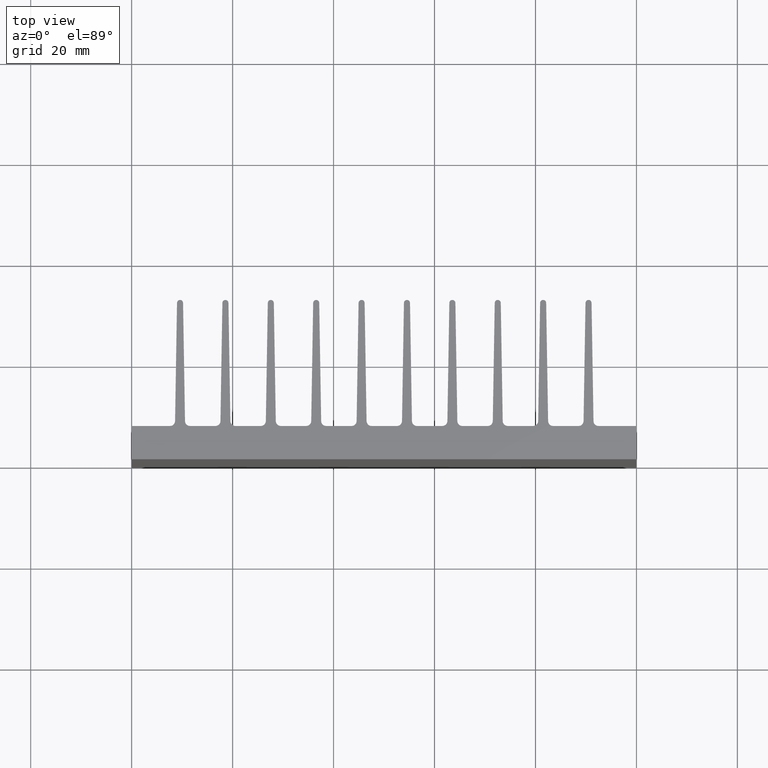
[diagram: clean part render]
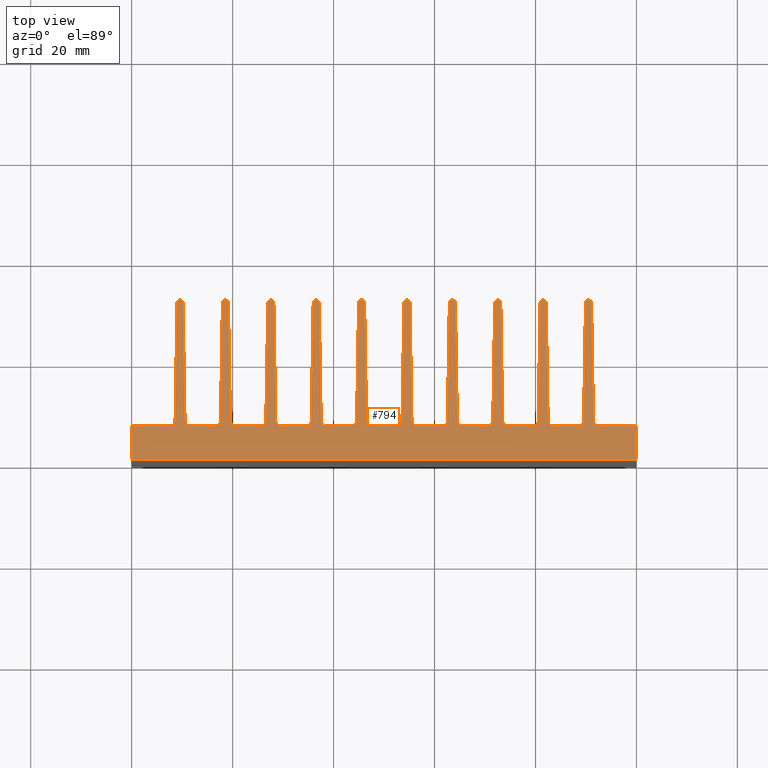
[diagram: same view with one face highlighted and labeled with its STEP entity id]
A machine part, top view. The second image highlights one B-rep face of the part: STEP entity #794.
In plain terms, the highlighted planar face has unit normal (0, 0, 1).
Its self-contained STEP definition (entity closure, byte-faithful):
#4 = LINE ( 'NONE', #1754, #1948 ) ;
#12 = VECTOR ( 'NONE', #834, 1000.000000000000000 ) ;
#14 = ORIENTED_EDGE ( 'NONE', *, *, #1889, .T. ) ;
#22 = AXIS2_PLACEMENT_3D ( 'NONE', #1067, #1056, #1045 ) ;
#35 = CIRCLE ( 'NONE', #413, 0.9990671641784687473 ) ;
#41 = DIRECTION ( 'NONE',  ( -1.000000000000000000, 0.0000000000000000000, 0.0000000000000000000 ) ) ;
#46 = CARTESIAN_POINT ( 'NONE',  ( 82.50021520648810736, 7.576534462238232237, 50.00000000000000000 ) ) ;
#48 = AXIS2_PLACEMENT_3D ( 'NONE', #2113, #2110, #2054 ) ;
#53 = DIRECTION ( 'NONE',  ( -0.0000000000000000000, -0.0000000000000000000, -1.000000000000000000 ) ) ;
#54 = ORIENTED_EDGE ( 'NONE', *, *, #1078, .T. ) ;
#60 = DIRECTION ( 'NONE',  ( 1.000000000000000000, 0.0000000000000000000, 0.0000000000000000000 ) ) ;
#62 = CARTESIAN_POINT ( 'NONE',  ( 92.49075262819188481, 7.592910412141361753, 50.00000000000000000 ) ) ;
#63 = VERTEX_POINT ( 'NONE', #1279 ) ;
#72 = DIRECTION ( 'NONE',  ( 1.000000000000000000, 0.0000000000000000000, 0.0000000000000000000 ) ) ;
#76 = VERTEX_POINT ( 'NONE', #1708 ) ;
#78 = VERTEX_POINT ( 'NONE', #1094 ) ;
#81 = EDGE_CURVE ( 'NONE', #1446, #1144, #1282, .T. ) ;
#89 = CIRCLE ( 'NONE', #22, 0.9990671641783577250 ) ;
#92 = EDGE_CURVE ( 'NONE', #1533, #1740, #155, .T. ) ;
#101 = CARTESIAN_POINT ( 'NONE',  ( 62.93460848062814961, 30.97108205391634783, 50.00000000000000000 ) ) ;
#102 = DIRECTION ( 'NONE',  ( -1.000000000000000000, 0.0000000000000000000, 0.0000000000000000000 ) ) ;
#104 = ORIENTED_EDGE ( 'NONE', *, *, #2258, .T. ) ;
#108 = EDGE_CURVE ( 'NONE', #707, #2148, #35, .T. ) ;
#109 = VERTEX_POINT ( 'NONE', #494 ) ;
#113 = EDGE_CURVE ( 'NONE', #879, #486, #1034, .T. ) ;
#117 = VECTOR ( 'NONE', #1698, 1000.000000000000114 ) ;
#119 = CARTESIAN_POINT ( 'NONE',  ( 26.58467339657067541, 7.576534462238220691, 50.00000000000000000 ) ) ;
#127 = CARTESIAN_POINT ( 'NONE',  ( 7.490752859647684225, 6.600116005069788905, 50.00000000000000000 ) ) ;
#139 = VERTEX_POINT ( 'NONE', #1988 ) ;
#141 = CARTESIAN_POINT ( 'NONE',  ( 88.52697179571366348, 6.593843247963054210, 50.00000000000000000 ) ) ;
#144 = VERTEX_POINT ( 'NONE', #1369 ) ;
#155 = CIRCLE ( 'NONE', #369, 0.9990671641784618640 ) ;
#157 = CARTESIAN_POINT ( 'NONE',  ( 83.49914815058606621, 6.593843247963054210, 50.00000000000000000 ) ) ;
#161 = VERTEX_POINT ( 'NONE', #1129 ) ;
#163 = ORIENTED_EDGE ( 'NONE', *, *, #1652, .T. ) ;
#172 = LINE ( 'NONE', #1892, #117 ) ;
#175 = ORIENTED_EDGE ( 'NONE', *, *, #1145, .T. ) ;
#177 = ORIENTED_EDGE ( 'NONE', *, *, #532, .T. ) ;
#184 = CARTESIAN_POINT ( 'NONE',  ( 35.95979504781058012, 30.97108205391635494, 50.00000000000000000 ) ) ;
#185 = CARTESIAN_POINT ( 'NONE',  ( 38.54112576255682399, 7.592910412141498533, 50.00000000000000000 ) ) ;
#186 = CARTESIAN_POINT ( 'NONE',  ( 99.99075285964768511, 6.593843247962997367, 50.00000000000000000 ) ) ;
#187 = AXIS2_PLACEMENT_3D ( 'NONE', #1314, #1310, #1309 ) ;
#190 = CARTESIAN_POINT ( 'NONE',  ( 91.49181968409395438, 7.576534462238235790, 50.00000000000000000 ) ) ;
#191 = CARTESIAN_POINT ( 'NONE',  ( 46.15028012243057987, 30.97108205391667468, 50.00000000000000000 ) ) ;
#192 = DIRECTION ( 'NONE',  ( 1.000000000000000000, 0.0000000000000000000, 0.0000000000000000000 ) ) ;
#197 = DIRECTION ( 'NONE',  ( 0.0000000000000000000, 0.0000000000000000000, 1.000000000000000000 ) ) ;
#199 = CARTESIAN_POINT ( 'NONE',  ( 70.54376284050192680, 6.593843247963016019, 50.00000000000000000 ) ) ;
#202 = CARTESIAN_POINT ( 'NONE',  ( 9.584421913500108303, 30.97108205391666047, 50.00000000000000000 ) ) ;
#204 = ORIENTED_EDGE ( 'NONE', *, *, #822, .T. ) ;
#211 = EDGE_CURVE ( 'NONE', #630, #1379, #932, .T. ) ;
#227 = EDGE_CURVE ( 'NONE', #1414, #1025, #1702, .T. ) ;
#234 = VERTEX_POINT ( 'NONE', #801 ) ;
#244 = EDGE_CURVE ( 'NONE', #917, #76, #396, .T. ) ;
#248 = AXIS2_PLACEMENT_3D ( 'NONE', #185, #760, #2160 ) ;
#255 = EDGE_CURVE ( 'NONE', #1255, #899, #591, .T. ) ;
#277 = AXIS2_PLACEMENT_3D ( 'NONE', #1294, #1284, #1254 ) ;
#280 = CARTESIAN_POINT ( 'NONE',  ( 56.52433471776843277, 7.592910412141391951, 50.00000000000000000 ) ) ;
#285 = ORIENTED_EDGE ( 'NONE', *, *, #1386, .T. ) ;
#293 = ORIENTED_EDGE ( 'NONE', *, *, #407, .T. ) ;
#296 = DIRECTION ( 'NONE',  ( -0.01639124023930036561, -0.9998656545973652054, 0.0000000000000000000 ) ) ;
#312 = VERTEX_POINT ( 'NONE', #119 ) ;
#313 = AXIS2_PLACEMENT_3D ( 'NONE', #2238, #2218, #2181 ) ;
#318 = VECTOR ( 'NONE', #660, 1000.000000000000114 ) ;
#330 = EDGE_CURVE ( 'NONE', #424, #1636, #2254, .T. ) ;
#338 = CARTESIAN_POINT ( 'NONE',  ( 80.91781743583989339, 30.97108205391637625, 50.00000000000000000 ) ) ;
#339 = CARTESIAN_POINT ( 'NONE',  ( 55.14188460003643399, 30.97108205391667823, 50.00000000000000000 ) ) ;
#340 = ORIENTED_EDGE ( 'NONE', *, *, #108, .T. ) ;
#341 = CARTESIAN_POINT ( 'NONE',  ( 7.490752859647684225, 6.600116005069786240, 50.00000000000000000 ) ) ;
#342 = CARTESIAN_POINT ( 'NONE',  ( 88.52697179571366348, 6.593843247963055099, 50.00000000000000000 ) ) ;
#348 = VERTEX_POINT ( 'NONE', #2114 ) ;
#361 = ORIENTED_EDGE ( 'NONE', *, *, #81, .T. ) ;
#362 = EDGE_CURVE ( 'NONE', #921, #1942, #2190, .T. ) ;
#369 = AXIS2_PLACEMENT_3D ( 'NONE', #412, #416, #399 ) ;
#373 = DIRECTION ( 'NONE',  ( -0.0000000000000000000, -0.0000000000000000000, -1.000000000000000000 ) ) ;
#375 = VECTOR ( 'NONE', #769, 1000.000000000000114 ) ;
#376 = ORIENTED_EDGE ( 'NONE', *, *, #1756, .T. ) ;
#379 = AXIS2_PLACEMENT_3D ( 'NONE', #505, #498, #496 ) ;
#384 = CARTESIAN_POINT ( 'NONE',  ( 80.53430026220583215, 7.576534462238232237, 50.00000000000000000 ) ) ;
#385 = CARTESIAN_POINT ( 'NONE',  ( 79.53536731810780225, 7.592910412141513632, 50.00000000000000000 ) ) ;
#386 = CARTESIAN_POINT ( 'NONE',  ( 52.56055388529017591, 7.592910412141502086, 50.00000000000000000 ) ) ;
#390 = DIRECTION ( 'NONE',  ( -0.0000000000000000000, -0.0000000000000000000, -1.000000000000000000 ) ) ;
#391 = AXIS2_PLACEMENT_3D ( 'NONE', #2182, #2162, #2141 ) ;
#396 = LINE ( 'NONE', #2048, #752 ) ;
#397 = CARTESIAN_POINT ( 'NONE',  ( 80.91781743583987918, 30.97108205391637625, 50.00000000000000000 ) ) ;
#399 = DIRECTION ( 'NONE',  ( 1.000000000000000000, 0.0000000000000000000, 0.0000000000000000000 ) ) ;
#400 = ORIENTED_EDGE ( 'NONE', *, *, #113, .T. ) ;
#406 = DIRECTION ( 'NONE',  ( -0.01639124023930073684, 0.9998656545973652054, 0.0000000000000000000 ) ) ;
#407 = EDGE_CURVE ( 'NONE', #2144, #549, #2027, .T. ) ;
#408 = VECTOR ( 'NONE', #1791, 1000.000000000000000 ) ;
#410 = VECTOR ( 'NONE', #909, 1000.000000000000000 ) ;
#412 = CARTESIAN_POINT ( 'NONE',  ( 61.55215836289607978, 7.592910412141484322, 50.00000000000000000 ) ) ;
#413 = AXIS2_PLACEMENT_3D ( 'NONE', #386, #373, #72 ) ;
#414 = VERTEX_POINT ( 'NONE', #1901 ) ;
#416 = DIRECTION ( 'NONE',  ( -0.0000000000000000000, -0.0000000000000000000, -1.000000000000000000 ) ) ;
#417 = ORIENTED_EDGE ( 'NONE', *, *, #1501, .T. ) ;
#422 = CARTESIAN_POINT ( 'NONE',  ( 74.50754367298020497, 6.593843247963050658, 50.00000000000000000 ) ) ;
#424 = VERTEX_POINT ( 'NONE', #1880 ) ;
#427 = DIRECTION ( 'NONE',  ( 1.000000000000000000, 0.0000000000000000000, 0.0000000000000000000 ) ) ;
#428 = ORIENTED_EDGE ( 'NONE', *, *, #598, .T. ) ;
#430 = CARTESIAN_POINT ( 'NONE',  ( 28.55058834085295061, 7.576534462238220691, 50.00000000000000000 ) ) ;
#434 = VERTEX_POINT ( 'NONE', #1885 ) ;
#439 = DIRECTION ( 'NONE',  ( -0.01639124023930073684, 0.9998656545973652054, 0.0000000000000000000 ) ) ;
#450 = EDGE_CURVE ( 'NONE', #899, #1541, #1979, .T. ) ;
#451 = CARTESIAN_POINT ( 'NONE',  ( 7.602531497261034943, 7.592910412141409715, 50.00000000000000000 ) ) ;
#452 = CARTESIAN_POINT ( 'NONE',  ( 52.56055388529019012, 6.593843247963036447, 50.00000000000000000 ) ) ;
#455 = VERTEX_POINT ( 'NONE', #1805 ) ;
#456 = DIRECTION ( 'NONE',  ( -0.0000000000000000000, -0.0000000000000000000, -1.000000000000000000 ) ) ;
#460 = DIRECTION ( 'NONE',  ( 1.000000000000000000, 0.0000000000000000000, 0.0000000000000000000 ) ) ;
#462 = VECTOR ( 'NONE', #680, 1000.000000000000000 ) ;
#465 = CARTESIAN_POINT ( 'NONE',  ( 91.10830251045989314, 30.97108205391669244, 50.00000000000000000 ) ) ;
#471 = CARTESIAN_POINT ( 'NONE',  ( 82.50021520648810736, 7.576534462238232237, 50.00000000000000000 ) ) ;
#473 = CARTESIAN_POINT ( 'NONE',  ( 37.15867564482473995, 30.97108205391666758, 50.00000000000000000 ) ) ;
#486 = VERTEX_POINT ( 'NONE', #1641 ) ;
#490 = CARTESIAN_POINT ( 'NONE',  ( 19.55898386324710003, 7.576534462238229573, 50.00000000000000000 ) ) ;
#491 = VECTOR ( 'NONE', #504, 1000.000000000000000 ) ;
#494 = CARTESIAN_POINT ( 'NONE',  ( 53.94300400302227416, 30.97108205391636560, 50.00000000000000000 ) ) ;
#496 = DIRECTION ( 'NONE',  ( 1.000000000000000000, 0.0000000000000000000, 0.0000000000000000000 ) ) ;
#497 = CIRCLE ( 'NONE', #1017, 0.5994402985070763634 ) ;
#498 = DIRECTION ( 'NONE',  ( -0.0000000000000000000, -0.0000000000000000000, -1.000000000000000000 ) ) ;
#504 = DIRECTION ( 'NONE',  ( -0.01639124023930066398, -0.9998656545973652054, 0.0000000000000000000 ) ) ;
#505 = CARTESIAN_POINT ( 'NONE',  ( 25.58574045247274142, 7.592910412141403498, 50.00000000000000000 ) ) ;
#513 = FACE_OUTER_BOUND ( 'NONE', #1124, .T. ) ;
#515 = CIRCLE ( 'NONE', #2097, 0.5994402985070799161 ) ;
#520 = CIRCLE ( 'NONE', #2206, 0.5994402985070729217 ) ;
#532 = EDGE_CURVE ( 'NONE', #161, #803, #1525, .T. ) ;
#534 = EDGE_CURVE ( 'NONE', #139, #1907, #1630, .T. ) ;
#541 = CIRCLE ( 'NONE', #391, 0.5994402985070799161 ) ;
#542 = VERTEX_POINT ( 'NONE', #1399 ) ;
#543 = DIRECTION ( 'NONE',  ( -0.01639124023930044194, 0.9998656545973652054, 0.0000000000000000000 ) ) ;
#549 = VERTEX_POINT ( 'NONE', #2176 ) ;
#554 = VECTOR ( 'NONE', #1098, 1000.000000000000114 ) ;
#559 = LINE ( 'NONE', #1119, #839 ) ;
#571 = LINE ( 'NONE', #828, #1612 ) ;
#574 = CARTESIAN_POINT ( 'NONE',  ( 44.95139952541642003, 30.97108205391636204, 50.00000000000000000 ) ) ;
#579 = VERTEX_POINT ( 'NONE', #46 ) ;
#583 = ORIENTED_EDGE ( 'NONE', *, *, #92, .T. ) ;
#588 = VECTOR ( 'NONE', #633, 1000.000000000000000 ) ;
#591 = LINE ( 'NONE', #574, #491 ) ;
#596 = VERTEX_POINT ( 'NONE', #1871 ) ;
#598 = EDGE_CURVE ( 'NONE', #1790, #596, #1194, .T. ) ;
#600 = LINE ( 'NONE', #619, #554 ) ;
#604 = CARTESIAN_POINT ( 'NONE',  ( 99.99075285964768511, -3.561464751583587329E-08, 50.00000000000000000 ) ) ;
#608 = CARTESIAN_POINT ( 'NONE',  ( 55.52540177367048813, 7.576534462238220691, 50.00000000000000000 ) ) ;
#619 = CARTESIAN_POINT ( 'NONE',  ( 37.54219281845879408, 7.576534462238212697, 50.00000000000000000 ) ) ;
#623 = CIRCLE ( 'NONE', #2071, 0.9990671641784653056 ) ;
#629 = LINE ( 'NONE', #2236, #631 ) ;
#630 = VERTEX_POINT ( 'NONE', #1406 ) ;
#631 = VECTOR ( 'NONE', #2230, 1000.000000000000000 ) ;
#633 = DIRECTION ( 'NONE',  ( 0.0000000000000000000, 1.000000000000000000, 0.0000000000000000000 ) ) ;
#636 = AXIS2_PLACEMENT_3D ( 'NONE', #876, #1201, #2034 ) ;
#658 = CARTESIAN_POINT ( 'NONE',  ( 61.55215836289605136, 6.593843247963027565, 50.00000000000000000 ) ) ;
#660 = DIRECTION ( 'NONE',  ( -0.01639124023930044541, 0.9998656545973652054, 0.0000000000000000000 ) ) ;
#664 = AXIS2_PLACEMENT_3D ( 'NONE', #870, #859, #852 ) ;
#665 = CARTESIAN_POINT ( 'NONE',  ( 46.53379729606464110, 7.576534462238218914, 50.00000000000000000 ) ) ;
#668 = DIRECTION ( 'NONE',  ( 1.000000000000000000, 0.0000000000000000000, 0.0000000000000000000 ) ) ;
#670 = DIRECTION ( 'NONE',  ( -0.0000000000000000000, -0.0000000000000000000, -1.000000000000000000 ) ) ;
#673 = CARTESIAN_POINT ( 'NONE',  ( 34.57734493007858845, 7.592910412141395504, 50.00000000000000000 ) ) ;
#680 = DIRECTION ( 'NONE',  ( -1.000000000000000000, 0.0000000000000000000, 0.0000000000000000000 ) ) ;
#686 = EDGE_CURVE ( 'NONE', #76, #1223, #1103, .T. ) ;
#687 = EDGE_CURVE ( 'NONE', #1998, #139, #1079, .T. ) ;
#689 = DIRECTION ( 'NONE',  ( -1.000000000000000000, -5.782411586589356653E-16, 0.0000000000000000000 ) ) ;
#698 = EDGE_CURVE ( 'NONE', #720, #414, #903, .T. ) ;
#700 = CARTESIAN_POINT ( 'NONE',  ( 53.55948682938821293, 7.576534462238220691, 50.00000000000000000 ) ) ;
#706 = LINE ( 'NONE', #2193, #2001 ) ;
#707 = VERTEX_POINT ( 'NONE', #700 ) ;
#715 = AXIS2_PLACEMENT_3D ( 'NONE', #673, #670, #668 ) ;
#720 = VERTEX_POINT ( 'NONE', #341 ) ;
#725 = ORIENTED_EDGE ( 'NONE', *, *, #892, .T. ) ;
#727 = AXIS2_PLACEMENT_3D ( 'NONE', #928, #926, #912 ) ;
#736 = LINE ( 'NONE', #141, #763 ) ;
#737 = ORIENTED_EDGE ( 'NONE', *, *, #362, .T. ) ;
#746 = CIRCLE ( 'NONE', #1814, 0.9990671641784618640 ) ;
#749 = ORIENTED_EDGE ( 'NONE', *, *, #990, .T. ) ;
#752 = VECTOR ( 'NONE', #439, 1000.000000000000114 ) ;
#753 = ORIENTED_EDGE ( 'NONE', *, *, #1809, .T. ) ;
#755 = ORIENTED_EDGE ( 'NONE', *, *, #255, .T. ) ;
#759 = EDGE_CURVE ( 'NONE', #1202, #234, #629, .T. ) ;
#760 = DIRECTION ( 'NONE',  ( -0.0000000000000000000, -0.0000000000000000000, -1.000000000000000000 ) ) ;
#761 = EDGE_CURVE ( 'NONE', #2216, #1255, #541, .T. ) ;
#763 = VECTOR ( 'NONE', #41, 1000.000000000000000 ) ;
#769 = DIRECTION ( 'NONE',  ( -0.01639124023930044194, 0.9998656545973652054, 0.0000000000000000000 ) ) ;
#772 = CARTESIAN_POINT ( 'NONE',  ( 10.18386221200718822, 30.97108205391668179, 50.00000000000000000 ) ) ;
#777 = AXIS2_PLACEMENT_3D ( 'NONE', #1685, #1660, #1649 ) ;
#788 = CIRCLE ( 'NONE', #866, 0.9990671641783646084 ) ;
#790 = CARTESIAN_POINT ( 'NONE',  ( 8.984981614993030163, 30.97108205391636915, 50.00000000000000000 ) ) ;
#792 = CARTESIAN_POINT ( 'NONE',  ( 34.57734493007856003, 6.593843247963032006, 50.00000000000000000 ) ) ;
#794 = ADVANCED_FACE ( 'NONE', ( #513 ), #2223, .T. ) ;
#799 = LINE ( 'NONE', #851, #12 ) ;
#801 = CARTESIAN_POINT ( 'NONE',  ( 65.51593919537435795, 6.593843247963018683, 50.00000000000000000 ) ) ;
#803 = VERTEX_POINT ( 'NONE', #2243 ) ;
#811 = DIRECTION ( 'NONE',  ( -0.01639124023930066398, -0.9998656545973652054, 0.0000000000000000000 ) ) ;
#822 = EDGE_CURVE ( 'NONE', #1902, #63, #520, .T. ) ;
#828 = CARTESIAN_POINT ( 'NONE',  ( 10.56737938564124768, 7.576534462238226908, 50.00000000000000000 ) ) ;
#832 = CARTESIAN_POINT ( 'NONE',  ( 11.56631232973926338, 6.593843247963047993, 50.00000000000000000 ) ) ;
#834 = DIRECTION ( 'NONE',  ( -1.000000000000000000, 0.0000000000000000000, 0.0000000000000000000 ) ) ;
#837 = DIRECTION ( 'NONE',  ( 1.000000000000000000, 0.0000000000000000000, 0.0000000000000000000 ) ) ;
#839 = VECTOR ( 'NONE', #1317, 1000.000000000000000 ) ;
#851 = CARTESIAN_POINT ( 'NONE',  ( 52.56055388529019012, 6.593843247963039111, 50.00000000000000000 ) ) ;
#852 = DIRECTION ( 'NONE',  ( 1.000000000000000000, 0.0000000000000000000, 0.0000000000000000000 ) ) ;
#854 = DIRECTION ( 'NONE',  ( 0.0000000000000000000, 0.0000000000000000000, 1.000000000000000000 ) ) ;
#859 = DIRECTION ( 'NONE',  ( -0.0000000000000000000, -0.0000000000000000000, -1.000000000000000000 ) ) ;
#860 = AXIS2_PLACEMENT_3D ( 'NONE', #971, #966, #953 ) ;
#861 = EDGE_CURVE ( 'NONE', #947, #1514, #172, .T. ) ;
#866 = AXIS2_PLACEMENT_3D ( 'NONE', #280, #390, #427 ) ;
#870 = CARTESIAN_POINT ( 'NONE',  ( 16.59413597486688730, 7.592910412141411491, 50.00000000000000000 ) ) ;
#876 = CARTESIAN_POINT ( 'NONE',  ( 54.54244430152935053, 30.97108205391665692, 50.00000000000000000 ) ) ;
#879 = VERTEX_POINT ( 'NONE', #1670 ) ;
#887 = LINE ( 'NONE', #1888, #408 ) ;
#892 = EDGE_CURVE ( 'NONE', #1942, #78, #746, .T. ) ;
#897 = VECTOR ( 'NONE', #1057, 1000.000000000000000 ) ;
#899 = VERTEX_POINT ( 'NONE', #1613 ) ;
#903 = LINE ( 'NONE', #127, #915 ) ;
#906 = DIRECTION ( 'NONE',  ( -0.01639124023930073684, -0.9998656545973652054, 0.0000000000000000000 ) ) ;
#909 = DIRECTION ( 'NONE',  ( 1.283360689468215926E-18, -1.000000000000000000, 0.0000000000000000000 ) ) ;
#912 = DIRECTION ( 'NONE',  ( 1.000000000000000000, 0.0000000000000000000, 0.0000000000000000000 ) ) ;
#914 = VECTOR ( 'NONE', #1508, 1000.000000000000000 ) ;
#915 = VECTOR ( 'NONE', #689, 1000.000000000000000 ) ;
#916 = VECTOR ( 'NONE', #906, 1000.000000000000000 ) ;
#917 = VERTEX_POINT ( 'NONE', #1578 ) ;
#918 = EDGE_CURVE ( 'NONE', #1587, #2220, #1267, .T. ) ;
#921 = VERTEX_POINT ( 'NONE', #1467 ) ;
#924 = VERTEX_POINT ( 'NONE', #1458 ) ;
#926 = DIRECTION ( 'NONE',  ( -0.0000000000000000000, -0.0000000000000000000, -1.000000000000000000 ) ) ;
#928 = CARTESIAN_POINT ( 'NONE',  ( 88.52697179571364927, 7.592910412141516296, 50.00000000000000000 ) ) ;
#932 = LINE ( 'NONE', #792, #462 ) ;
#947 = VERTEX_POINT ( 'NONE', #1443 ) ;
#953 = DIRECTION ( 'NONE',  ( 1.000000000000000000, 0.0000000000000000000, 0.0000000000000000000 ) ) ;
#963 = CARTESIAN_POINT ( 'NONE',  ( -0.009247140352316128575, 6.600116005069784464, 50.00000000000000000 ) ) ;
#966 = DIRECTION ( 'NONE',  ( 0.0000000000000000000, 0.0000000000000000000, 1.000000000000000000 ) ) ;
#970 = ORIENTED_EDGE ( 'NONE', *, *, #1296, .T. ) ;
#971 = CARTESIAN_POINT ( 'NONE',  ( 72.52565325674110852, 30.97108205391664271, 50.00000000000000000 ) ) ;
#990 = EDGE_CURVE ( 'NONE', #1847, #1902, #1069, .T. ) ;
#994 = ORIENTED_EDGE ( 'NONE', *, *, #1547, .T. ) ;
#995 = CIRCLE ( 'NONE', #664, 0.9990671641783646084 ) ;
#996 = ORIENTED_EDGE ( 'NONE', *, *, #761, .T. ) ;
#1002 = LINE ( 'NONE', #604, #588 ) ;
#1017 = AXIS2_PLACEMENT_3D ( 'NONE', #1126, #1134, #1143 ) ;
#1022 = CARTESIAN_POINT ( 'NONE',  ( 53.94300400302227416, 30.97108205391636560, 50.00000000000000000 ) ) ;
#1024 = EDGE_CURVE ( 'NONE', #144, #312, #559, .T. ) ;
#1025 = VERTEX_POINT ( 'NONE', #1191 ) ;
#1029 = VECTOR ( 'NONE', #1696, 1000.000000000000000 ) ;
#1030 = ORIENTED_EDGE ( 'NONE', *, *, #1841, .T. ) ;
#1034 = CIRCLE ( 'NONE', #248, 0.9990671641784618640 ) ;
#1036 = EDGE_CURVE ( 'NONE', #348, #947, #1411, .T. ) ;
#1037 = VECTOR ( 'NONE', #1793, 1000.000000000000114 ) ;
#1042 = CARTESIAN_POINT ( 'NONE',  ( 92.49075262819191323, 6.593843247962997367, 50.00000000000000000 ) ) ;
#1043 = ORIENTED_EDGE ( 'NONE', *, *, #2081, .T. ) ;
#1045 = DIRECTION ( 'NONE',  ( 1.000000000000000000, 0.0000000000000000000, 0.0000000000000000000 ) ) ;
#1046 = EDGE_CURVE ( 'NONE', #2237, #1899, #1346, .T. ) ;
#1047 = ORIENTED_EDGE ( 'NONE', *, *, #330, .T. ) ;
#1051 = CARTESIAN_POINT ( 'NONE',  ( 25.58574045247271300, 6.593843247963042664, 50.00000000000000000 ) ) ;
#1056 = DIRECTION ( 'NONE',  ( -0.0000000000000000000, -0.0000000000000000000, -1.000000000000000000 ) ) ;
#1057 = DIRECTION ( 'NONE',  ( -1.000000000000000000, 0.0000000000000000000, 0.0000000000000000000 ) ) ;
#1059 = CARTESIAN_POINT ( 'NONE',  ( 19.17546668961303880, 30.97108205391668534, 50.00000000000000000 ) ) ;
#1067 = CARTESIAN_POINT ( 'NONE',  ( 74.50754367298017655, 7.592910412141407051, 50.00000000000000000 ) ) ;
#1069 = LINE ( 'NONE', #1428, #1123 ) ;
#1071 = EDGE_CURVE ( 'NONE', #2220, #921, #995, .T. ) ;
#1077 = VECTOR ( 'NONE', #1714, 1000.000000000000000 ) ;
#1078 = EDGE_CURVE ( 'NONE', #455, #2005, #1583, .T. ) ;
#1079 = LINE ( 'NONE', #1051, #897 ) ;
#1094 = CARTESIAN_POINT ( 'NONE',  ( 10.56737938564124768, 7.576534462238226908, 50.00000000000000000 ) ) ;
#1098 = DIRECTION ( 'NONE',  ( -0.01639124023930044194, 0.9998656545973652054, 0.0000000000000000000 ) ) ;
#1103 = CIRCLE ( 'NONE', #1320, 0.5994402985070867995 ) ;
#1104 = CIRCLE ( 'NONE', #1205, 0.5994402985070799161 ) ;
#1114 = LINE ( 'NONE', #1881, #1077 ) ;
#1116 = EDGE_CURVE ( 'NONE', #312, #1998, #1699, .T. ) ;
#1119 = CARTESIAN_POINT ( 'NONE',  ( 26.96819057020473664, 30.97108205391636204, 50.00000000000000000 ) ) ;
#1123 = VECTOR ( 'NONE', #1323, 1000.000000000000114 ) ;
#1124 = EDGE_LOOP ( 'NONE', ( #2021, #177, #376, #1520, #1030, #749, #204, #1904, #1503, #2156, #2234, #1797, #1865, #175, #428, #1733, #163, #2031, #1554, #1268, #417, #2140, #1787, #1471, #2180, #1434, #583, #1043, #104, #361, #1869, #1288, #340, #1269, #1047, #1680, #996, #755, #1957, #994, #400, #1325, #293, #753, #1751, #1243, #970, #1340, #1273, #1994, #2098, #1964, #1674, #2211, #1830, #2158, #1465, #737, #725, #285, #2186, #54, #14, #1778 ) ) ;
#1125 = CARTESIAN_POINT ( 'NONE',  ( 29.54952128495096630, 6.593843247963032006, 50.00000000000000000 ) ) ;
#1126 = CARTESIAN_POINT ( 'NONE',  ( 18.57602639110595888, 30.97108205391666402, 50.00000000000000000 ) ) ;
#1129 = CARTESIAN_POINT ( 'NONE',  ( -0.009247140352316119902, -3.561464751583587329E-08, 50.00000000000000000 ) ) ;
#1132 = EDGE_CURVE ( 'NONE', #579, #1517, #2023, .T. ) ;
#1133 = VECTOR ( 'NONE', #1700, 1000.000000000000114 ) ;
#1134 = DIRECTION ( 'NONE',  ( 0.0000000000000000000, 0.0000000000000000000, 1.000000000000000000 ) ) ;
#1137 = CIRCLE ( 'NONE', #1253, 0.9990671641783577250 ) ;
#1143 = DIRECTION ( 'NONE',  ( 1.000000000000000000, 0.0000000000000000000, 0.0000000000000000000 ) ) ;
#1144 = VERTEX_POINT ( 'NONE', #339 ) ;
#1145 = EDGE_CURVE ( 'NONE', #1263, #1790, #1831, .T. ) ;
#1154 = CARTESIAN_POINT ( 'NONE',  ( 46.53379729606464110, 7.576534462238218914, 50.00000000000000000 ) ) ;
#1156 = CARTESIAN_POINT ( 'NONE',  ( 25.58574045247271300, 6.593843247963041776, 50.00000000000000000 ) ) ;
#1165 = LINE ( 'NONE', #1762, #1037 ) ;
#1180 = CARTESIAN_POINT ( 'NONE',  ( 8.601464441358970703, 7.576534462238226908, 50.00000000000000000 ) ) ;
#1189 = VECTOR ( 'NONE', #1654, 1000.000000000000000 ) ;
#1191 = CARTESIAN_POINT ( 'NONE',  ( 28.16707116721889292, 30.97108205391667468, 50.00000000000000000 ) ) ;
#1194 = CIRCLE ( 'NONE', #2174, 0.9990671641784687473 ) ;
#1196 = LINE ( 'NONE', #1490, #1189 ) ;
#1201 = DIRECTION ( 'NONE',  ( 0.0000000000000000000, 0.0000000000000000000, 1.000000000000000000 ) ) ;
#1202 = VERTEX_POINT ( 'NONE', #199 ) ;
#1205 = AXIS2_PLACEMENT_3D ( 'NONE', #1890, #1920, #1925 ) ;
#1223 = VERTEX_POINT ( 'NONE', #101 ) ;
#1243 = ORIENTED_EDGE ( 'NONE', *, *, #211, .T. ) ;
#1249 = CARTESIAN_POINT ( 'NONE',  ( -0.009247140352316119902, -3.561464751583587329E-08, 50.00000000000000000 ) ) ;
#1250 = CARTESIAN_POINT ( 'NONE',  ( 28.55058834085295061, 7.576534462238220691, 50.00000000000000000 ) ) ;
#1253 = AXIS2_PLACEMENT_3D ( 'NONE', #1845, #1851, #1860 ) ;
#1254 = DIRECTION ( 'NONE',  ( 1.000000000000000000, 0.0000000000000000000, 0.0000000000000000000 ) ) ;
#1255 = VERTEX_POINT ( 'NONE', #1344 ) ;
#1263 = VERTEX_POINT ( 'NONE', #338 ) ;
#1267 = LINE ( 'NONE', #1607, #914 ) ;
#1268 = ORIENTED_EDGE ( 'NONE', *, *, #861, .T. ) ;
#1269 = ORIENTED_EDGE ( 'NONE', *, *, #1693, .T. ) ;
#1273 = ORIENTED_EDGE ( 'NONE', *, *, #2076, .T. ) ;
#1279 = CARTESIAN_POINT ( 'NONE',  ( 89.90942191344575463, 30.97108205391637981, 50.00000000000000000 ) ) ;
#1282 = LINE ( 'NONE', #608, #1507 ) ;
#1284 = DIRECTION ( 'NONE',  ( 0.0000000000000000000, 0.0000000000000000000, 1.000000000000000000 ) ) ;
#1287 = DIRECTION ( 'NONE',  ( 1.000000000000000000, 0.0000000000000000000, 0.0000000000000000000 ) ) ;
#1288 = ORIENTED_EDGE ( 'NONE', *, *, #2272, .T. ) ;
#1294 = CARTESIAN_POINT ( 'NONE',  ( 81.51725773434696976, 30.97108205391666758, 50.00000000000000000 ) ) ;
#1296 = EDGE_CURVE ( 'NONE', #1379, #1414, #623, .T. ) ;
#1305 = LINE ( 'NONE', #1930, #1029 ) ;
#1309 = DIRECTION ( 'NONE',  ( 1.000000000000000000, 0.0000000000000000000, 0.0000000000000000000 ) ) ;
#1310 = DIRECTION ( 'NONE',  ( -0.0000000000000000000, -0.0000000000000000000, -1.000000000000000000 ) ) ;
#1312 = EDGE_CURVE ( 'NONE', #1574, #348, #706, .T. ) ;
#1314 = CARTESIAN_POINT ( 'NONE',  ( 20.55791680734512994, 7.592910412141504750, 50.00000000000000000 ) ) ;
#1317 = DIRECTION ( 'NONE',  ( -0.01639124023930081317, -0.9998656545973652054, 0.0000000000000000000 ) ) ;
#1320 = AXIS2_PLACEMENT_3D ( 'NONE', #2103, #854, #837 ) ;
#1323 = DIRECTION ( 'NONE',  ( -0.01639124023930014357, 0.9998656545973652054, 0.0000000000000000000 ) ) ;
#1325 = ORIENTED_EDGE ( 'NONE', *, *, #2152, .T. ) ;
#1333 = LINE ( 'NONE', #963, #410 ) ;
#1340 = ORIENTED_EDGE ( 'NONE', *, *, #227, .T. ) ;
#1344 = CARTESIAN_POINT ( 'NONE',  ( 44.95139952541642003, 30.97108205391636204, 50.00000000000000000 ) ) ;
#1346 = CIRCLE ( 'NONE', #727, 0.9990671641784687473 ) ;
#1352 = EDGE_CURVE ( 'NONE', #1144, #109, #2191, .T. ) ;
#1369 = CARTESIAN_POINT ( 'NONE',  ( 26.96819057020473309, 30.97108205391636204, 50.00000000000000000 ) ) ;
#1379 = VERTEX_POINT ( 'NONE', #1125 ) ;
#1383 = DIRECTION ( 'NONE',  ( -0.0000000000000000000, -0.0000000000000000000, -1.000000000000000000 ) ) ;
#1386 = EDGE_CURVE ( 'NONE', #78, #1729, #571, .T. ) ;
#1394 = EDGE_CURVE ( 'NONE', #1907, #1970, #4, .T. ) ;
#1399 = CARTESIAN_POINT ( 'NONE',  ( 56.52433471776845408, 6.593843247963025789, 50.00000000000000000 ) ) ;
#1401 = CARTESIAN_POINT ( 'NONE',  ( 17.59306891896482483, 7.576534462238228684, 50.00000000000000000 ) ) ;
#1406 = CARTESIAN_POINT ( 'NONE',  ( 34.57734493007856003, 6.593843247963032006, 50.00000000000000000 ) ) ;
#1411 = CIRCLE ( 'NONE', #860, 0.5994402985070729217 ) ;
#1414 = VERTEX_POINT ( 'NONE', #430 ) ;
#1428 = CARTESIAN_POINT ( 'NONE',  ( 91.49181968409395438, 7.576534462238235790, 50.00000000000000000 ) ) ;
#1434 = ORIENTED_EDGE ( 'NONE', *, *, #1560, .T. ) ;
#1443 = CARTESIAN_POINT ( 'NONE',  ( 71.92621295823403216, 30.97108205391635138, 50.00000000000000000 ) ) ;
#1446 = VERTEX_POINT ( 'NONE', #2267 ) ;
#1458 = CARTESIAN_POINT ( 'NONE',  ( 35.57627787417651888, 7.576534462238212697, 50.00000000000000000 ) ) ;
#1465 = ORIENTED_EDGE ( 'NONE', *, *, #1071, .T. ) ;
#1467 = CARTESIAN_POINT ( 'NONE',  ( 16.59413597486685887, 6.593843247963047105, 50.00000000000000000 ) ) ;
#1471 = ORIENTED_EDGE ( 'NONE', *, *, #244, .T. ) ;
#1485 = DIRECTION ( 'NONE',  ( 1.000000000000000000, 0.0000000000000000000, 0.0000000000000000000 ) ) ;
#1490 = CARTESIAN_POINT ( 'NONE',  ( 89.90942191344574042, 30.97108205391637981, 50.00000000000000000 ) ) ;
#1500 = LINE ( 'NONE', #184, #2109 ) ;
#1501 = EDGE_CURVE ( 'NONE', #1514, #1202, #2165, .T. ) ;
#1503 = ORIENTED_EDGE ( 'NONE', *, *, #1046, .T. ) ;
#1504 = DIRECTION ( 'NONE',  ( -0.0000000000000000000, -0.0000000000000000000, -1.000000000000000000 ) ) ;
#1506 = VECTOR ( 'NONE', #1287, 1000.000000000000000 ) ;
#1507 = VECTOR ( 'NONE', #543, 1000.000000000000000 ) ;
#1508 = DIRECTION ( 'NONE',  ( -0.01639124023930066398, -0.9998656545973652054, 0.0000000000000000000 ) ) ;
#1514 = VERTEX_POINT ( 'NONE', #1932 ) ;
#1517 = VERTEX_POINT ( 'NONE', #1915 ) ;
#1520 = ORIENTED_EDGE ( 'NONE', *, *, #1886, .T. ) ;
#1522 = DIRECTION ( 'NONE',  ( 1.000000000000000000, 0.0000000000000000000, 0.0000000000000000000 ) ) ;
#1525 = LINE ( 'NONE', #1249, #1506 ) ;
#1533 = VERTEX_POINT ( 'NONE', #1922 ) ;
#1541 = VERTEX_POINT ( 'NONE', #1867 ) ;
#1544 = DIRECTION ( 'NONE',  ( -0.0000000000000000000, -0.0000000000000000000, -1.000000000000000000 ) ) ;
#1547 = EDGE_CURVE ( 'NONE', #1541, #879, #887, .T. ) ;
#1554 = ORIENTED_EDGE ( 'NONE', *, *, #1036, .T. ) ;
#1558 = DIRECTION ( 'NONE',  ( 1.000000000000000000, 0.0000000000000000000, 0.0000000000000000000 ) ) ;
#1560 = EDGE_CURVE ( 'NONE', #1223, #1533, #1165, .T. ) ;
#1561 = CARTESIAN_POINT ( 'NONE',  ( 11.56631232973927759, 7.592910412141510079, 50.00000000000000000 ) ) ;
#1574 = VERTEX_POINT ( 'NONE', #1692 ) ;
#1575 = CARTESIAN_POINT ( 'NONE',  ( 17.97658609259888252, 30.97108205391637270, 50.00000000000000000 ) ) ;
#1578 = CARTESIAN_POINT ( 'NONE',  ( 64.51700625127637068, 7.576534462238204704, 50.00000000000000000 ) ) ;
#1583 = LINE ( 'NONE', #790, #916 ) ;
#1587 = VERTEX_POINT ( 'NONE', #1575 ) ;
#1599 = EDGE_CURVE ( 'NONE', #1517, #1263, #1816, .T. ) ;
#1607 = CARTESIAN_POINT ( 'NONE',  ( 17.97658609259888252, 30.97108205391637270, 50.00000000000000000 ) ) ;
#1609 = DIRECTION ( 'NONE',  ( -0.01639124023930059112, 0.9998656545973652054, 0.0000000000000000000 ) ) ;
#1612 = VECTOR ( 'NONE', #1849, 1000.000000000000114 ) ;
#1613 = CARTESIAN_POINT ( 'NONE',  ( 44.56788235178236590, 7.576534462238218914, 50.00000000000000000 ) ) ;
#1626 = VECTOR ( 'NONE', #296, 1000.000000000000000 ) ;
#1630 = CIRCLE ( 'NONE', #187, 0.9990671641784618640 ) ;
#1636 = VERTEX_POINT ( 'NONE', #1154 ) ;
#1637 = LINE ( 'NONE', #1022, #1133 ) ;
#1641 = CARTESIAN_POINT ( 'NONE',  ( 37.54219281845879408, 7.576534462238212697, 50.00000000000000000 ) ) ;
#1647 = AXIS2_PLACEMENT_3D ( 'NONE', #451, #456, #460 ) ;
#1649 = DIRECTION ( 'NONE',  ( 1.000000000000000000, 0.0000000000000000000, 0.0000000000000000000 ) ) ;
#1652 = EDGE_CURVE ( 'NONE', #1788, #1574, #89, .T. ) ;
#1654 = DIRECTION ( 'NONE',  ( -0.01639124023930095889, -0.9998656545973652054, 0.0000000000000000000 ) ) ;
#1660 = DIRECTION ( 'NONE',  ( -0.0000000000000000000, -0.0000000000000000000, -1.000000000000000000 ) ) ;
#1670 = CARTESIAN_POINT ( 'NONE',  ( 38.54112576255680978, 6.593843247963036447, 50.00000000000000000 ) ) ;
#1671 = EDGE_CURVE ( 'NONE', #414, #161, #1333, .T. ) ;
#1674 = ORIENTED_EDGE ( 'NONE', *, *, #534, .T. ) ;
#1680 = ORIENTED_EDGE ( 'NONE', *, *, #1736, .T. ) ;
#1685 = CARTESIAN_POINT ( 'NONE',  ( 43.56894940768442126, 7.592910412141402610, 50.00000000000000000 ) ) ;
#1692 = CARTESIAN_POINT ( 'NONE',  ( 73.50861072888226033, 7.576534462238208256, 50.00000000000000000 ) ) ;
#1693 = EDGE_CURVE ( 'NONE', #2148, #424, #799, .T. ) ;
#1696 = DIRECTION ( 'NONE',  ( -1.000000000000000000, 0.0000000000000000000, 0.0000000000000000000 ) ) ;
#1698 = DIRECTION ( 'NONE',  ( -0.01639124023930036561, -0.9998656545973652054, 0.0000000000000000000 ) ) ;
#1699 = CIRCLE ( 'NONE', #379, 0.9990671641783611667 ) ;
#1700 = DIRECTION ( 'NONE',  ( -0.01639124023930066398, -0.9998656545973652054, 0.0000000000000000000 ) ) ;
#1702 = LINE ( 'NONE', #1250, #318 ) ;
#1708 = CARTESIAN_POINT ( 'NONE',  ( 64.13348907764230944, 30.97108205391666047, 50.00000000000000000 ) ) ;
#1714 = DIRECTION ( 'NONE',  ( -1.000000000000000000, 0.0000000000000000000, 0.0000000000000000000 ) ) ;
#1729 = VERTEX_POINT ( 'NONE', #772 ) ;
#1732 = EDGE_CURVE ( 'NONE', #924, #630, #1820, .T. ) ;
#1733 = ORIENTED_EDGE ( 'NONE', *, *, #2091, .T. ) ;
#1736 = EDGE_CURVE ( 'NONE', #1636, #2216, #1807, .T. ) ;
#1740 = VERTEX_POINT ( 'NONE', #658 ) ;
#1751 = ORIENTED_EDGE ( 'NONE', *, *, #1732, .T. ) ;
#1754 = CARTESIAN_POINT ( 'NONE',  ( 19.55898386324710003, 7.576534462238229573, 50.00000000000000000 ) ) ;
#1756 = EDGE_CURVE ( 'NONE', #803, #434, #1002, .T. ) ;
#1762 = CARTESIAN_POINT ( 'NONE',  ( 62.93460848062814961, 30.97108205391634783, 50.00000000000000000 ) ) ;
#1770 = DIRECTION ( 'NONE',  ( -0.0000000000000000000, -0.0000000000000000000, -1.000000000000000000 ) ) ;
#1778 = ORIENTED_EDGE ( 'NONE', *, *, #698, .T. ) ;
#1783 = CARTESIAN_POINT ( 'NONE',  ( 89.52590473981167918, 7.576534462238235790, 50.00000000000000000 ) ) ;
#1787 = ORIENTED_EDGE ( 'NONE', *, *, #1818, .T. ) ;
#1788 = VERTEX_POINT ( 'NONE', #422 ) ;
#1790 = VERTEX_POINT ( 'NONE', #384 ) ;
#1791 = DIRECTION ( 'NONE',  ( -1.000000000000000000, 0.0000000000000000000, 0.0000000000000000000 ) ) ;
#1793 = DIRECTION ( 'NONE',  ( -0.01639124023930036561, -0.9998656545973652054, 0.0000000000000000000 ) ) ;
#1794 = EDGE_CURVE ( 'NONE', #1729, #455, #515, .T. ) ;
#1797 = ORIENTED_EDGE ( 'NONE', *, *, #1132, .T. ) ;
#1802 = CARTESIAN_POINT ( 'NONE',  ( 65.51593919537432953, 7.592910412141389287, 50.00000000000000000 ) ) ;
#1805 = CARTESIAN_POINT ( 'NONE',  ( 8.984981614993028387, 30.97108205391636915, 50.00000000000000000 ) ) ;
#1807 = LINE ( 'NONE', #665, #375 ) ;
#1809 = EDGE_CURVE ( 'NONE', #549, #924, #1500, .T. ) ;
#1814 = AXIS2_PLACEMENT_3D ( 'NONE', #1561, #1544, #1522 ) ;
#1816 = CIRCLE ( 'NONE', #277, 0.5994402985070729217 ) ;
#1818 = EDGE_CURVE ( 'NONE', #234, #917, #2118, .T. ) ;
#1820 = CIRCLE ( 'NONE', #715, 0.9990671641783646084 ) ;
#1830 = ORIENTED_EDGE ( 'NONE', *, *, #2164, .T. ) ;
#1831 = LINE ( 'NONE', #397, #1626 ) ;
#1833 = DIRECTION ( 'NONE',  ( 1.000000000000000000, 0.0000000000000000000, 0.0000000000000000000 ) ) ;
#1835 = VECTOR ( 'NONE', #102, 1000.000000000000000 ) ;
#1841 = EDGE_CURVE ( 'NONE', #1985, #1847, #2010, .T. ) ;
#1845 = CARTESIAN_POINT ( 'NONE',  ( 83.49914815058603779, 7.592910412141416820, 50.00000000000000000 ) ) ;
#1847 = VERTEX_POINT ( 'NONE', #190 ) ;
#1848 = DIRECTION ( 'NONE',  ( 0.0000000000000000000, 0.0000000000000000000, 1.000000000000000000 ) ) ;
#1849 = DIRECTION ( 'NONE',  ( -0.01639124023930051827, 0.9998656545973652054, 0.0000000000000000000 ) ) ;
#1851 = DIRECTION ( 'NONE',  ( -0.0000000000000000000, -0.0000000000000000000, -1.000000000000000000 ) ) ;
#1852 = CARTESIAN_POINT ( 'NONE',  ( 90.50886221195283099, 30.97108205391667113, 50.00000000000000000 ) ) ;
#1860 = DIRECTION ( 'NONE',  ( 1.000000000000000000, 0.0000000000000000000, 0.0000000000000000000 ) ) ;
#1861 = DIRECTION ( 'NONE',  ( 0.0000000000000000000, 0.0000000000000000000, 1.000000000000000000 ) ) ;
#1865 = ORIENTED_EDGE ( 'NONE', *, *, #1599, .T. ) ;
#1867 = CARTESIAN_POINT ( 'NONE',  ( 43.56894940768440705, 6.593843247963034671, 50.00000000000000000 ) ) ;
#1869 = ORIENTED_EDGE ( 'NONE', *, *, #1352, .T. ) ;
#1871 = CARTESIAN_POINT ( 'NONE',  ( 79.53536731810781646, 6.593843247963051546, 50.00000000000000000 ) ) ;
#1877 = CARTESIAN_POINT ( 'NONE',  ( 36.55923534631765648, 30.97108205391664626, 50.00000000000000000 ) ) ;
#1878 = VERTEX_POINT ( 'NONE', #157 ) ;
#1880 = CARTESIAN_POINT ( 'NONE',  ( 47.53273024016265680, 6.593843247963039111, 50.00000000000000000 ) ) ;
#1881 = CARTESIAN_POINT ( 'NONE',  ( 61.55215836289605136, 6.593843247963025789, 50.00000000000000000 ) ) ;
#1885 = CARTESIAN_POINT ( 'NONE',  ( 99.99075285964768511, 6.593843247962997367, 50.00000000000000000 ) ) ;
#1886 = EDGE_CURVE ( 'NONE', #434, #1985, #1913, .T. ) ;
#1888 = CARTESIAN_POINT ( 'NONE',  ( 43.56894940768440705, 6.593843247963036447, 50.00000000000000000 ) ) ;
#1889 = EDGE_CURVE ( 'NONE', #2005, #720, #1945, .T. ) ;
#1890 = CARTESIAN_POINT ( 'NONE',  ( 27.56763086871181301, 30.97108205391665336, 50.00000000000000000 ) ) ;
#1892 = CARTESIAN_POINT ( 'NONE',  ( 71.92621295823403216, 30.97108205391635138, 50.00000000000000000 ) ) ;
#1897 = AXIS2_PLACEMENT_3D ( 'NONE', #62, #53, #60 ) ;
#1899 = VERTEX_POINT ( 'NONE', #342 ) ;
#1901 = CARTESIAN_POINT ( 'NONE',  ( -0.009247140352316128575, 6.600116005069784464, 50.00000000000000000 ) ) ;
#1902 = VERTEX_POINT ( 'NONE', #465 ) ;
#1903 = DIRECTION ( 'NONE',  ( 1.000000000000000000, 0.0000000000000000000, 0.0000000000000000000 ) ) ;
#1904 = ORIENTED_EDGE ( 'NONE', *, *, #2047, .T. ) ;
#1907 = VERTEX_POINT ( 'NONE', #490 ) ;
#1913 = LINE ( 'NONE', #186, #1835 ) ;
#1915 = CARTESIAN_POINT ( 'NONE',  ( 82.11669803285404612, 30.97108205391668889, 50.00000000000000000 ) ) ;
#1920 = DIRECTION ( 'NONE',  ( 0.0000000000000000000, 0.0000000000000000000, 1.000000000000000000 ) ) ;
#1922 = CARTESIAN_POINT ( 'NONE',  ( 62.55109130699410258, 7.576534462238203815, 50.00000000000000000 ) ) ;
#1925 = DIRECTION ( 'NONE',  ( 1.000000000000000000, 0.0000000000000000000, 0.0000000000000000000 ) ) ;
#1930 = CARTESIAN_POINT ( 'NONE',  ( 79.53536731810781646, 6.593843247963050658, 50.00000000000000000 ) ) ;
#1932 = CARTESIAN_POINT ( 'NONE',  ( 71.54269578459998513, 7.576534462238207368, 50.00000000000000000 ) ) ;
#1942 = VERTEX_POINT ( 'NONE', #832 ) ;
#1945 = CIRCLE ( 'NONE', #1647, 0.9990671641783611667 ) ;
#1948 = VECTOR ( 'NONE', #1609, 1000.000000000000114 ) ;
#1950 = DIRECTION ( 'NONE',  ( 1.000000000000000000, 0.0000000000000000000, 0.0000000000000000000 ) ) ;
#1957 = ORIENTED_EDGE ( 'NONE', *, *, #450, .T. ) ;
#1959 = DIRECTION ( 'NONE',  ( -0.0000000000000000000, -0.0000000000000000000, -1.000000000000000000 ) ) ;
#1964 = ORIENTED_EDGE ( 'NONE', *, *, #687, .T. ) ;
#1965 = CARTESIAN_POINT ( 'NONE',  ( 70.54376284050194101, 7.592910412141487875, 50.00000000000000000 ) ) ;
#1970 = VERTEX_POINT ( 'NONE', #1059 ) ;
#1979 = CIRCLE ( 'NONE', #777, 0.9990671641783646084 ) ;
#1984 = AXIS2_PLACEMENT_3D ( 'NONE', #1802, #1770, #1903 ) ;
#1985 = VERTEX_POINT ( 'NONE', #1042 ) ;
#1988 = CARTESIAN_POINT ( 'NONE',  ( 20.55791680734511573, 6.593843247963042664, 50.00000000000000000 ) ) ;
#1992 = VECTOR ( 'NONE', #406, 1000.000000000000114 ) ;
#1994 = ORIENTED_EDGE ( 'NONE', *, *, #1024, .T. ) ;
#1998 = VERTEX_POINT ( 'NONE', #1156 ) ;
#2001 = VECTOR ( 'NONE', #2049, 1000.000000000000114 ) ;
#2005 = VERTEX_POINT ( 'NONE', #1180 ) ;
#2010 = CIRCLE ( 'NONE', #1897, 0.9990671641783577250 ) ;
#2021 = ORIENTED_EDGE ( 'NONE', *, *, #1671, .T. ) ;
#2023 = LINE ( 'NONE', #471, #1992 ) ;
#2027 = CIRCLE ( 'NONE', #2093, 0.5994402985070799161 ) ;
#2031 = ORIENTED_EDGE ( 'NONE', *, *, #1312, .T. ) ;
#2034 = DIRECTION ( 'NONE',  ( 1.000000000000000000, 0.0000000000000000000, 0.0000000000000000000 ) ) ;
#2047 = EDGE_CURVE ( 'NONE', #63, #2237, #1196, .T. ) ;
#2048 = CARTESIAN_POINT ( 'NONE',  ( 64.51700625127637068, 7.576534462238204704, 50.00000000000000000 ) ) ;
#2049 = DIRECTION ( 'NONE',  ( -0.01639124023930073684, 0.9998656545973652054, 0.0000000000000000000 ) ) ;
#2054 = DIRECTION ( 'NONE',  ( 1.000000000000000000, 0.0000000000000000000, -0.0000000000000000000 ) ) ;
#2066 = DIRECTION ( 'NONE',  ( 1.000000000000000000, 0.0000000000000000000, 0.0000000000000000000 ) ) ;
#2071 = AXIS2_PLACEMENT_3D ( 'NONE', #2150, #1383, #2066 ) ;
#2075 = EDGE_CURVE ( 'NONE', #1878, #579, #1137, .T. ) ;
#2076 = EDGE_CURVE ( 'NONE', #1025, #144, #1104, .T. ) ;
#2079 = DIRECTION ( 'NONE',  ( -1.000000000000000000, 0.0000000000000000000, 0.0000000000000000000 ) ) ;
#2081 = EDGE_CURVE ( 'NONE', #1740, #542, #1114, .T. ) ;
#2091 = EDGE_CURVE ( 'NONE', #596, #1788, #1305, .T. ) ;
#2093 = AXIS2_PLACEMENT_3D ( 'NONE', #1877, #1861, #1558 ) ;
#2097 = AXIS2_PLACEMENT_3D ( 'NONE', #202, #197, #192 ) ;
#2098 = ORIENTED_EDGE ( 'NONE', *, *, #1116, .T. ) ;
#2100 = VECTOR ( 'NONE', #2079, 1000.000000000000000 ) ;
#2103 = CARTESIAN_POINT ( 'NONE',  ( 63.53404877913524018, 30.97108205391663915, 50.00000000000000000 ) ) ;
#2109 = VECTOR ( 'NONE', #811, 1000.000000000000000 ) ;
#2110 = DIRECTION ( 'NONE',  ( 0.0000000000000000000, 0.0000000000000000000, 1.000000000000000000 ) ) ;
#2113 = CARTESIAN_POINT ( 'NONE',  ( 92.49075262819188481, 7.592910412141361753, 50.00000000000000000 ) ) ;
#2114 = CARTESIAN_POINT ( 'NONE',  ( 73.12509355524819910, 30.97108205391666402, 50.00000000000000000 ) ) ;
#2118 = CIRCLE ( 'NONE', #1984, 0.9990671641783716028 ) ;
#2123 = CARTESIAN_POINT ( 'NONE',  ( 16.59413597486685887, 6.593843247963047993, 50.00000000000000000 ) ) ;
#2129 = EDGE_CURVE ( 'NONE', #1899, #1878, #736, .T. ) ;
#2140 = ORIENTED_EDGE ( 'NONE', *, *, #759, .T. ) ;
#2141 = DIRECTION ( 'NONE',  ( 1.000000000000000000, 0.0000000000000000000, 0.0000000000000000000 ) ) ;
#2144 = VERTEX_POINT ( 'NONE', #473 ) ;
#2148 = VERTEX_POINT ( 'NONE', #452 ) ;
#2150 = CARTESIAN_POINT ( 'NONE',  ( 29.54952128495098407, 7.592910412141496757, 50.00000000000000000 ) ) ;
#2152 = EDGE_CURVE ( 'NONE', #486, #2144, #600, .T. ) ;
#2156 = ORIENTED_EDGE ( 'NONE', *, *, #2129, .T. ) ;
#2158 = ORIENTED_EDGE ( 'NONE', *, *, #918, .T. ) ;
#2160 = DIRECTION ( 'NONE',  ( 1.000000000000000000, 0.0000000000000000000, 0.0000000000000000000 ) ) ;
#2162 = DIRECTION ( 'NONE',  ( 0.0000000000000000000, 0.0000000000000000000, 1.000000000000000000 ) ) ;
#2164 = EDGE_CURVE ( 'NONE', #1970, #1587, #497, .T. ) ;
#2165 = CIRCLE ( 'NONE', #2177, 0.9990671641784687473 ) ;
#2174 = AXIS2_PLACEMENT_3D ( 'NONE', #385, #1504, #1485 ) ;
#2176 = CARTESIAN_POINT ( 'NONE',  ( 35.95979504781058012, 30.97108205391635494, 50.00000000000000000 ) ) ;
#2177 = AXIS2_PLACEMENT_3D ( 'NONE', #1965, #1959, #1950 ) ;
#2180 = ORIENTED_EDGE ( 'NONE', *, *, #686, .T. ) ;
#2181 = DIRECTION ( 'NONE',  ( 1.000000000000000000, 0.0000000000000000000, 0.0000000000000000000 ) ) ;
#2182 = CARTESIAN_POINT ( 'NONE',  ( 45.55083982392350350, 30.97108205391665336, 50.00000000000000000 ) ) ;
#2186 = ORIENTED_EDGE ( 'NONE', *, *, #1794, .T. ) ;
#2190 = LINE ( 'NONE', #2123, #2100 ) ;
#2191 = CIRCLE ( 'NONE', #636, 0.5994402985070799161 ) ;
#2193 = CARTESIAN_POINT ( 'NONE',  ( 73.50861072888226033, 7.576534462238208256, 50.00000000000000000 ) ) ;
#2206 = AXIS2_PLACEMENT_3D ( 'NONE', #1852, #1848, #1833 ) ;
#2211 = ORIENTED_EDGE ( 'NONE', *, *, #1394, .T. ) ;
#2216 = VERTEX_POINT ( 'NONE', #191 ) ;
#2218 = DIRECTION ( 'NONE',  ( -0.0000000000000000000, -0.0000000000000000000, -1.000000000000000000 ) ) ;
#2220 = VERTEX_POINT ( 'NONE', #1401 ) ;
#2223 = PLANE ( 'NONE',  #48 ) ;
#2230 = DIRECTION ( 'NONE',  ( -1.000000000000000000, 0.0000000000000000000, 0.0000000000000000000 ) ) ;
#2234 = ORIENTED_EDGE ( 'NONE', *, *, #2075, .T. ) ;
#2236 = CARTESIAN_POINT ( 'NONE',  ( 70.54376284050192680, 6.593843247963018683, 50.00000000000000000 ) ) ;
#2237 = VERTEX_POINT ( 'NONE', #1783 ) ;
#2238 = CARTESIAN_POINT ( 'NONE',  ( 47.53273024016267101, 7.592910412141502086, 50.00000000000000000 ) ) ;
#2243 = CARTESIAN_POINT ( 'NONE',  ( 99.99075285964768511, -3.561464751583587329E-08, 50.00000000000000000 ) ) ;
#2254 = CIRCLE ( 'NONE', #313, 0.9990671641784618640 ) ;
#2258 = EDGE_CURVE ( 'NONE', #542, #1446, #788, .T. ) ;
#2267 = CARTESIAN_POINT ( 'NONE',  ( 55.52540177367048813, 7.576534462238220691, 50.00000000000000000 ) ) ;
#2272 = EDGE_CURVE ( 'NONE', #109, #707, #1637, .T. ) ;